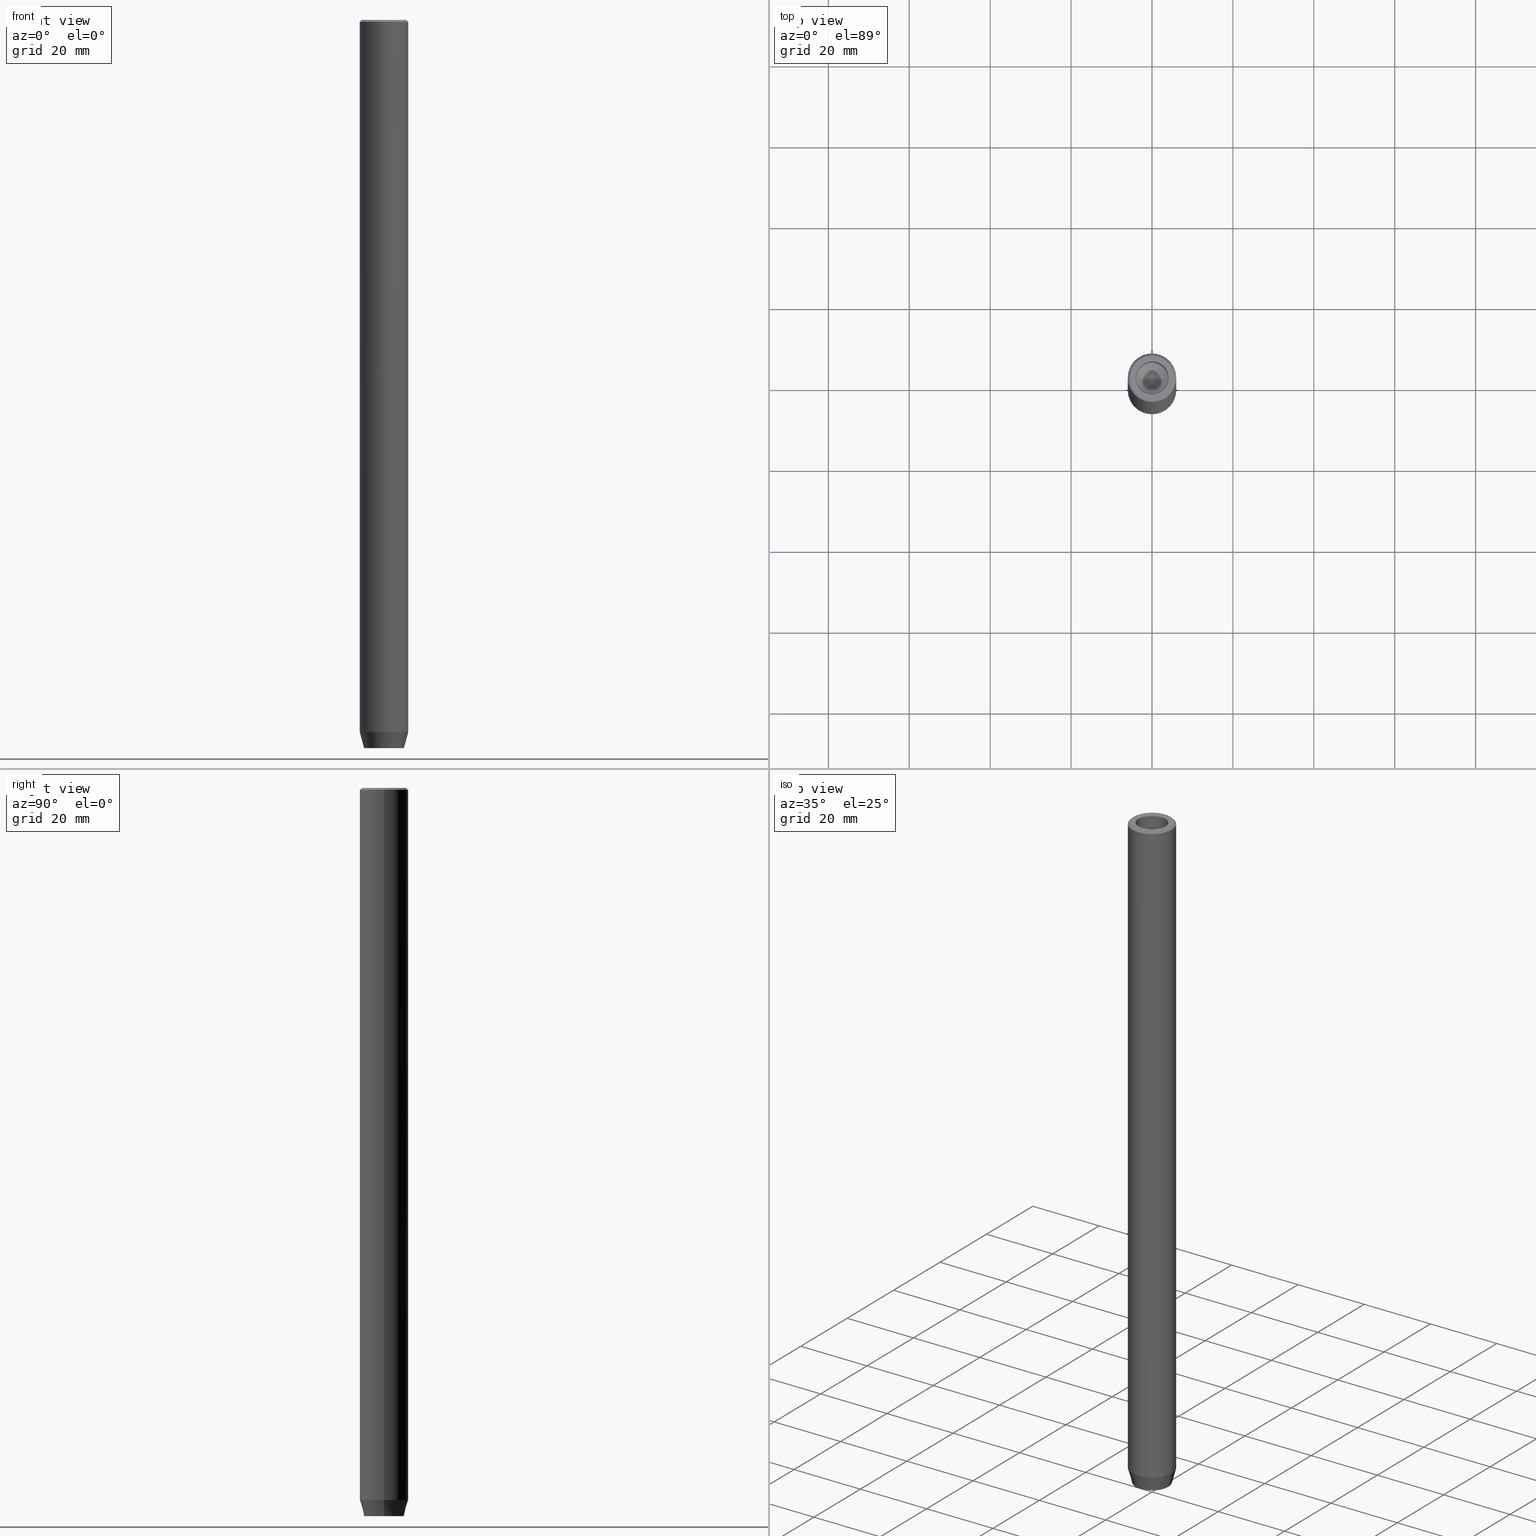
[diagram: canonical four-view strip — front | top / right | iso, engineering-drawing reading convention]
A machine part, canonical four-view strip (front | top / right | iso — engineering-drawing reading convention). The complete STEP part file that produces these views, byte-faithful:
ISO-10303-21;
HEADER;
FILE_DESCRIPTION (( 'STEP AP203' ),
    '1' );
FILE_NAME ('f27b.STEP',
    '2024-01-02T19:11:00',
    ( '' ),
    ( '' ),
    'SwSTEP 2.0',
    'SolidWorks 2019',
    '' );
FILE_SCHEMA (( 'CONFIG_CONTROL_DESIGN' ));
ENDSEC;

DATA;
#1 = AXIS2_PLACEMENT_3D ( 'NONE', #82, #423, #521 ) ;
#2 = LINE ( 'NONE', #211, #68 ) ;
#3 = DIRECTION ( 'NONE',  ( 3.004629197474318063E-16, 1.000000000000000000, 0.000000000000000000 ) ) ;
#4 = CARTESIAN_POINT ( 'NONE',  ( 0.000000000000000000, 0.000000000000000000, -0.4999999999999891753 ) ) ;
#5 = DIRECTION ( 'NONE',  ( -0.8660254037844387076, 0.4999999999999997780, 0.000000000000000000 ) ) ;
#6 = VECTOR ( 'NONE', #103, 1000.000000000000114 ) ;
#7 = DIRECTION ( 'NONE',  ( 1.000000000000000000, 0.000000000000000000, 0.000000000000000000 ) ) ;
#8 = EDGE_CURVE ( 'NONE', #277, #551, #499, .T. ) ;
#9 = LINE ( 'NONE', #464, #177 ) ;
#10 = CARTESIAN_POINT ( 'NONE',  ( 3.999999999999996447, 0.000000000000000000, -0.2999999999999999889 ) ) ;
#11 = AXIS2_PLACEMENT_3D ( 'NONE', #248, #84, #522 ) ;
#12 = EDGE_CURVE ( 'NONE', #48, #226, #301, .T. ) ;
#13 = DIRECTION ( 'NONE',  ( 1.000000000000000000, 0.000000000000000000, 0.000000000000000000 ) ) ;
#14 = ORIENTED_EDGE ( 'NONE', *, *, #18, .F. ) ;
#15 = DIRECTION ( 'NONE',  ( 1.000000000000000000, 0.000000000000000000, 0.000000000000000000 ) ) ;
#16 = ORIENTED_EDGE ( 'NONE', *, *, #212, .F. ) ;
#17 = DIRECTION ( 'NONE',  ( -0.8660254037844387076, -0.5000000000000001110, 0.000000000000000000 ) ) ;
#18 = EDGE_CURVE ( 'NONE', #109, #405, #589, .T. ) ;
#19 = ORIENTED_EDGE ( 'NONE', *, *, #315, .T. ) ;
#20 = DIRECTION ( 'NONE',  ( -0.8660254037844385966, -0.4999999999999999445, 0.000000000000000000 ) ) ;
#21 = AXIS2_PLACEMENT_3D ( 'NONE', #245, #154, #491 ) ;
#22 = LINE ( 'NONE', #424, #352 ) ;
#23 = ORIENTED_EDGE ( 'NONE', *, *, #527, .T. ) ;
#24 = ADVANCED_FACE ( 'NONE', ( #634 ), #185, .F. ) ;
#25 = ORIENTED_EDGE ( 'NONE', *, *, #461, .F. ) ;
#26 = VECTOR ( 'NONE', #470, 1000.000000000000227 ) ;
#27 = AXIS2_PLACEMENT_3D ( 'NONE', #4, #549, #7 ) ;
#28 = FACE_OUTER_BOUND ( 'NONE', #316, .T. ) ;
#29 = FACE_OUTER_BOUND ( 'NONE', #451, .T. ) ;
#30 = EDGE_CURVE ( 'NONE', #587, #126, #348, .T. ) ;
#31 = ORIENTED_EDGE ( 'NONE', *, *, #418, .F. ) ;
#32 = DIRECTION ( 'NONE',  ( -0.000000000000000000, -0.000000000000000000, 1.000000000000000000 ) ) ;
#33 = EDGE_CURVE ( 'NONE', #143, #504, #79, .T. ) ;
#34 = ORIENTED_EDGE ( 'NONE', *, *, #61, .T. ) ;
#35 = APPROVAL_ROLE ( '' ) ;
#36 = CIRCLE ( 'NONE', #125, 5.500000000000004441 ) ;
#37 = DATE_TIME_ROLE ( 'classification_date' ) ;
#38 = DIRECTION ( 'NONE',  ( -0.000000000000000000, -0.000000000000000000, 1.000000000000000000 ) ) ;
#39 = ORIENTED_EDGE ( 'NONE', *, *, #337, .F. ) ;
#40 = CALENDAR_DATE ( 2024, 2, 1 ) ;
#41 = CARTESIAN_POINT ( 'NONE',  ( 0.000000000000000000, 4.928203230275505220, -180.0000000000000000 ) ) ;
#42 = APPROVAL_ROLE ( '' ) ;
#43 = CARTESIAN_POINT ( 'NONE',  ( 2.499999999999999556, -1.443375672974064550, -174.1999999999999886 ) ) ;
#44 = ORIENTED_EDGE ( 'NONE', *, *, #8, .F. ) ;
#45 = CIRCLE ( 'NONE', #610, 5.500000000000004441 ) ;
#46 = DIRECTION ( 'NONE',  ( -0.2588190451025214611, 3.169619151431773569E-17, 0.9659258262890680902 ) ) ;
#47 = EDGE_CURVE ( 'NONE', #251, #226, #157, .T. ) ;
#48 = VERTEX_POINT ( 'NONE', #298 ) ;
#49 = LINE ( 'NONE', #584, #91 ) ;
#50 = VERTEX_POINT ( 'NONE', #160 ) ;
#51 = ORIENTED_EDGE ( 'NONE', *, *, #478, .F. ) ;
#52 = TOROIDAL_SURFACE ( 'NONE', #493, 4.299999999999996270, 0.2999999999999999889 ) ;
#53 = DIRECTION ( 'NONE',  ( 1.000000000000000000, 0.000000000000000000, 0.000000000000000000 ) ) ;
#54 = CC_DESIGN_PERSON_AND_ORGANIZATION_ASSIGNMENT ( #239, #433, ( #540 ) ) ;
#55 = ORIENTED_EDGE ( 'NONE', *, *, #337, .T. ) ;
#56 = CARTESIAN_POINT ( 'NONE',  ( 6.000000000000000000, 0.000000000000000000, -176.0000000000000000 ) ) ;
#57 = EDGE_LOOP ( 'NONE', ( #134, #19, #305, #440 ) ) ;
#58 = VECTOR ( 'NONE', #497, 1000.000000000000000 ) ;
#59 = DIRECTION ( 'NONE',  ( 1.000000000000000000, 0.000000000000000000, 0.000000000000000000 ) ) ;
#60 = DIRECTION ( 'NONE',  ( 0.8660254037844385966, -0.4999999999999999445, 0.000000000000000000 ) ) ;
#61 = EDGE_CURVE ( 'NONE', #551, #180, #253, .T. ) ;
#62 = ORIENTED_EDGE ( 'NONE', *, *, #502, .T. ) ;
#63 = CARTESIAN_POINT ( 'NONE',  ( 0.000000000000000000, 0.000000000000000000, -176.0000000000000000 ) ) ;
#64 = DIRECTION ( 'NONE',  ( -0.000000000000000000, -0.000000000000000000, 1.000000000000000000 ) ) ;
#65 = CARTESIAN_POINT ( 'NONE',  ( -3.999999999999996447, 4.898587196589408884E-16, 0.000000000000000000 ) ) ;
#66 = DIRECTION ( 'NONE',  ( -0.000000000000000000, -0.000000000000000000, -1.000000000000000000 ) ) ;
#67 = DIRECTION ( 'NONE',  ( -0.000000000000000000, -0.000000000000000000, 1.000000000000000000 ) ) ;
#68 = VECTOR ( 'NONE', #601, 1000.000000000000114 ) ;
#69 = ADVANCED_FACE ( 'NONE', ( #548 ), #131, .F. ) ;
#70 = CIRCLE ( 'NONE', #27, 6.000000000000000000 ) ;
#71 = CARTESIAN_POINT ( 'NONE',  ( 4.928203230275505220, 0.000000000000000000, -180.0000000000000000 ) ) ;
#72 = ORIENTED_EDGE ( 'NONE', *, *, #422, .F. ) ;
#73 = DIRECTION ( 'NONE',  ( 0.000000000000000000, 0.000000000000000000, -1.000000000000000000 ) ) ;
#74 = FACE_OUTER_BOUND ( 'NONE', #249, .T. ) ;
#75 = ORIENTED_EDGE ( 'NONE', *, *, #198, .T. ) ;
#76 = ORIENTED_EDGE ( 'NONE', *, *, #8, .T. ) ;
#77 =( NAMED_UNIT ( * ) SI_UNIT ( $, .STERADIAN. ) SOLID_ANGLE_UNIT ( ) );
#78 = ORIENTED_EDGE ( 'NONE', *, *, #107, .F. ) ;
#79 = CIRCLE ( 'NONE', #468, 3.999999999999996447 ) ;
#80 = ORIENTED_EDGE ( 'NONE', *, *, #444, .T. ) ;
#81 = FACE_OUTER_BOUND ( 'NONE', #453, .T. ) ;
#82 = CARTESIAN_POINT ( 'NONE',  ( 1.249999999999999778, -2.165063509461096380, -174.1999999999999886 ) ) ;
#83 = AXIS2_PLACEMENT_3D ( 'NONE', #463, #595, #605 ) ;
#84 = DIRECTION ( 'NONE',  ( 0.000000000000000000, -0.000000000000000000, 1.000000000000000000 ) ) ;
#85 = ORIENTED_EDGE ( 'NONE', *, *, #442, .T. ) ;
#86 = DIRECTION ( 'NONE',  ( 1.000000000000000000, 0.000000000000000000, 0.000000000000000000 ) ) ;
#87 = EDGE_LOOP ( 'NONE', ( #523, #489, #310, #474 ) ) ;
#88 = DIRECTION ( 'NONE',  ( -1.000000000000000000, 0.000000000000000000, 0.000000000000000000 ) ) ;
#89 = ORIENTED_EDGE ( 'NONE', *, *, #346, .F. ) ;
#90 = EDGE_CURVE ( 'NONE', #226, #48, #359, .T. ) ;
#91 = VECTOR ( 'NONE', #46, 1000.000000000000000 ) ;
#92 = PERSON ( 'NEUR�EN�', 'NEUR�EN�', 'NEUR�EN�', ('NEUR�EN�'), ('NEUR�EN�'), ('NEUR�EN�') ) ;
#93 = DIRECTION ( 'NONE',  ( 3.004629197474318063E-16, 1.000000000000000000, 0.000000000000000000 ) ) ;
#94 = CALENDAR_DATE ( 2024, 2, 1 ) ;
#95 = CARTESIAN_POINT ( 'NONE',  ( 6.000000000000000000, 0.000000000000000000, 0.000000000000000000 ) ) ;
#96 = ADVANCED_FACE ( 'NONE', ( #368 ), #52, .T. ) ;
#97 = CARTESIAN_POINT ( 'NONE',  ( 0.000000000000000000, 0.000000000000000000, -17.00000000000000000 ) ) ;
#98 = ORIENTED_EDGE ( 'NONE', *, *, #633, .F. ) ;
#99 = CIRCLE ( 'NONE', #146, 0.2999999999999999889 ) ;
#100 = APPROVAL ( #392, 'NEUR�EN�' ) ;
#101 = CALENDAR_DATE ( 2024, 2, 1 ) ;
#102 = LINE ( 'NONE', #490, #402 ) ;
#103 = DIRECTION ( 'NONE',  ( -0.8660254037844387076, 0.4999999999999997780, 0.000000000000000000 ) ) ;
#104 = CARTESIAN_POINT ( 'NONE',  ( 2.499999999999999556, -1.443375672974064550, -174.1999999999999886 ) ) ;
#105 = ORIENTED_EDGE ( 'NONE', *, *, #153, .F. ) ;
#106 = DIRECTION ( 'NONE',  ( -0.000000000000000000, -0.000000000000000000, 1.000000000000000000 ) ) ;
#107 = EDGE_CURVE ( 'NONE', #544, #520, #166, .T. ) ;
#108 = ORIENTED_EDGE ( 'NONE', *, *, #162, .F. ) ;
#109 = VERTEX_POINT ( 'NONE', #117 ) ;
#110 = AXIS2_PLACEMENT_3D ( 'NONE', #132, #532, #638 ) ;
#111 = LOCAL_TIME ( 20, 11, 0.000000000000000000, #482 ) ;
#112 = CARTESIAN_POINT ( 'NONE',  ( 0.000000000000000000, 0.000000000000000000, -180.0000000000000000 ) ) ;
#113 = CC_DESIGN_PERSON_AND_ORGANIZATION_ASSIGNMENT ( #295, #196, ( #540 ) ) ;
#114 = DIRECTION ( 'NONE',  ( 1.000000000000000000, 0.000000000000000000, 0.000000000000000000 ) ) ;
#115 = CARTESIAN_POINT ( 'NONE',  ( 2.499999999999999556, 0.000000000000000000, -174.1999999999999886 ) ) ;
#116 = ORIENTED_EDGE ( 'NONE', *, *, #254, .F. ) ;
#117 = CARTESIAN_POINT ( 'NONE',  ( 6.505213034913026604E-16, -2.886751345948127767, -174.1999999999999886 ) ) ;
#118 = EDGE_LOOP ( 'NONE', ( #76, #565, #14, #291 ) ) ;
#119 = DESIGN_CONTEXT ( 'detailed design', #264, 'design' ) ;
#120 = CARTESIAN_POINT ( 'NONE',  ( 0.000000000000000000, 0.000000000000000000, -176.0000000000000000 ) ) ;
#121 = PLANE ( 'NONE',  #123 ) ;
#122 = EDGE_LOOP ( 'NONE', ( #55, #568 ) ) ;
#123 = AXIS2_PLACEMENT_3D ( 'NONE', #378, #268, #127 ) ;
#124 = PERSON_AND_ORGANIZATION_ROLE ( 'design_owner' ) ;
#125 = AXIS2_PLACEMENT_3D ( 'NONE', #311, #106, #401 ) ;
#126 = VERTEX_POINT ( 'NONE', #318 ) ;
#127 = DIRECTION ( 'NONE',  ( -3.004629197474318063E-16, -1.000000000000000000, 0.000000000000000000 ) ) ;
#128 = CARTESIAN_POINT ( 'NONE',  ( -2.500000000000000444, -1.443375672974064106, -180.0000000000000000 ) ) ;
#129 = DIRECTION ( 'NONE',  ( -0.000000000000000000, -0.000000000000000000, -1.000000000000000000 ) ) ;
#130 = CARTESIAN_POINT ( 'NONE',  ( 0.000000000000000000, 2.886751345948129543, -174.1999999999999886 ) ) ;
#131 = CONICAL_SURFACE ( 'NONE', #397, 3.999999999999995559, 1.029744258676653645 ) ;
#132 = CARTESIAN_POINT ( 'NONE',  ( 0.000000000000000000, 0.000000000000000000, 0.000000000000000000 ) ) ;
#133 = ORIENTED_EDGE ( 'NONE', *, *, #212, .T. ) ;
#134 = ORIENTED_EDGE ( 'NONE', *, *, #90, .T. ) ;
#135 = PLANE ( 'NONE',  #414 ) ;
#136 = VECTOR ( 'NONE', #38, 1000.000000000000000 ) ;
#137 = ORIENTED_EDGE ( 'NONE', *, *, #150, .T. ) ;
#138 = CC_DESIGN_APPROVAL ( #576, ( #540 ) ) ;
#139 = DIRECTION ( 'NONE',  ( 0.000000000000000000, 0.000000000000000000, 1.000000000000000000 ) ) ;
#140 = PERSON_AND_ORGANIZATION ( #92, #276 ) ;
#141 = ADVANCED_FACE ( 'NONE', ( #375 ), #121, .F. ) ;
#142 = ORIENTED_EDGE ( 'NONE', *, *, #633, .T. ) ;
#143 = VERTEX_POINT ( 'NONE', #213 ) ;
#144 = CARTESIAN_POINT ( 'NONE',  ( -3.999999999999995559, 4.898587196589407898E-16, -17.00000000000000000 ) ) ;
#145 = EDGE_CURVE ( 'NONE', #506, #180, #505, .T. ) ;
#146 = AXIS2_PLACEMENT_3D ( 'NONE', #536, #432, #197 ) ;
#147 = APPLICATION_CONTEXT ( 'configuration controlled 3d designs of mechanical parts and assemblies' ) ;
#148 = VECTOR ( 'NONE', #593, 1000.000000000000000 ) ;
#149 = DIRECTION ( 'NONE',  ( 0.000000000000000000, 0.000000000000000000, -1.000000000000000000 ) ) ;
#150 = EDGE_CURVE ( 'NONE', #456, #234, #467, .T. ) ;
#151 = CALENDAR_DATE ( 2024, 2, 1 ) ;
#152 = CARTESIAN_POINT ( 'NONE',  ( 0.000000000000000000, 0.000000000000000000, 0.000000000000000000 ) ) ;
#153 = EDGE_CURVE ( 'NONE', #475, #426, #608, .T. ) ;
#154 = DIRECTION ( 'NONE',  ( -0.000000000000000000, -0.000000000000000000, 1.000000000000000000 ) ) ;
#155 = PERSON_AND_ORGANIZATION ( #92, #276 ) ;
#156 = FACE_OUTER_BOUND ( 'NONE', #118, .T. ) ;
#157 = LINE ( 'NONE', #56, #191 ) ;
#158 = AXIS2_PLACEMENT_3D ( 'NONE', #379, #473, #561 ) ;
#159 = LINE ( 'NONE', #164, #293 ) ;
#160 = CARTESIAN_POINT ( 'NONE',  ( -4.827031923828040939E-15, 0.000000000000000000, -19.40344247611024286 ) ) ;
#161 = DIRECTION ( 'NONE',  ( -0.000000000000000000, -0.000000000000000000, 1.000000000000000000 ) ) ;
#162 = EDGE_CURVE ( 'NONE', #201, #251, #628, .T. ) ;
#163 = ORIENTED_EDGE ( 'NONE', *, *, #187, .T. ) ;
#164 = CARTESIAN_POINT ( 'NONE',  ( -2.500000000000000444, -1.443375672974064106, -174.1999999999999886 ) ) ;
#165 = ORIENTED_EDGE ( 'NONE', *, *, #145, .T. ) ;
#166 = CIRCLE ( 'NONE', #322, 4.299999999999996270 ) ;
#167 = APPROVAL_PERSON_ORGANIZATION ( #630, #100, #284 ) ;
#168 = CARTESIAN_POINT ( 'NONE',  ( -1.250000000000000000, 2.165063509461097269, -180.0000000000000000 ) ) ;
#169 = CARTESIAN_POINT ( 'NONE',  ( 0.000000000000000000, 0.000000000000000000, -176.0000000000000000 ) ) ;
#170 = CARTESIAN_POINT ( 'NONE',  ( 4.299999999999996270, 0.000000000000000000, 0.000000000000000000 ) ) ;
#171 = DIRECTION ( 'NONE',  ( -0.000000000000000000, -0.000000000000000000, 1.000000000000000000 ) ) ;
#172 = EDGE_LOOP ( 'NONE', ( #137, #465, #207, #133 ) ) ;
#173 = ADVANCED_BREP_SHAPE_REPRESENTATION ( 'f27b', ( #312, #308 ), #581 ) ;
#174 = CARTESIAN_POINT ( 'NONE',  ( 0.000000000000000000, 0.000000000000000000, 0.000000000000000000 ) ) ;
#175 = ORIENTED_EDGE ( 'NONE', *, *, #198, .F. ) ;
#176 = CARTESIAN_POINT ( 'NONE',  ( 0.000000000000000000, 0.000000000000000000, -180.0000000000000000 ) ) ;
#177 = VECTOR ( 'NONE', #17, 999.9999999999998863 ) ;
#178 = AXIS2_PLACEMENT_3D ( 'NONE', #317, #208, #503 ) ;
#179 = CARTESIAN_POINT ( 'NONE',  ( -1.250000000000000000, 2.165063509461097269, -174.1999999999999886 ) ) ;
#180 = VERTEX_POINT ( 'NONE', #182 ) ;
#181 = CARTESIAN_POINT ( 'NONE',  ( 0.000000000000000000, 0.000000000000000000, 0.000000000000000000 ) ) ;
#182 = CARTESIAN_POINT ( 'NONE',  ( -2.499999999999999556, 1.443375672974064994, -180.0000000000000000 ) ) ;
#183 = ORIENTED_EDGE ( 'NONE', *, *, #187, .F. ) ;
#184 =( LENGTH_UNIT ( ) NAMED_UNIT ( * ) SI_UNIT ( .MILLI., .METRE. ) );
#185 = CONICAL_SURFACE ( 'NONE', #545, 3.999999999999995559, 1.029744258676653645 ) ;
#186 = LOCAL_TIME ( 20, 11, 0.000000000000000000, #622 ) ;
#187 = EDGE_CURVE ( 'NONE', #234, #277, #9, .T. ) ;
#188 = ORIENTED_EDGE ( 'NONE', *, *, #18, .T. ) ;
#189 = SHAPE_DEFINITION_REPRESENTATION ( #309, #173 ) ;
#190 = PLANE ( 'NONE',  #11 ) ;
#191 = VECTOR ( 'NONE', #541, 1000.000000000000000 ) ;
#192 = ORIENTED_EDGE ( 'NONE', *, *, #205, .F. ) ;
#193 = DATE_AND_TIME ( #40, #186 ) ;
#194 = CARTESIAN_POINT ( 'NONE',  ( 0.000000000000000000, 0.000000000000000000, -0.2999999999999999889 ) ) ;
#195 = CC_DESIGN_APPROVAL ( #273, ( #391 ) ) ;
#196 = PERSON_AND_ORGANIZATION_ROLE ( 'design_supplier' ) ;
#197 = DIRECTION ( 'NONE',  ( 0.000000000000000000, 0.000000000000000000, -1.000000000000000000 ) ) ;
#198 = EDGE_CURVE ( 'NONE', #406, #109, #22, .T. ) ;
#199 = CARTESIAN_POINT ( 'NONE',  ( 1.250000000000000222, 2.165063509461097269, -174.1999999999999886 ) ) ;
#200 = LINE ( 'NONE', #588, #439 ) ;
#201 = VERTEX_POINT ( 'NONE', #611 ) ;
#202 = DIRECTION ( 'NONE',  ( -1.000000000000000000, 1.224646799147353207E-16, 0.000000000000000000 ) ) ;
#203 = DIRECTION ( 'NONE',  ( -0.000000000000000000, -0.000000000000000000, 1.000000000000000000 ) ) ;
#204 = AXIS2_PLACEMENT_3D ( 'NONE', #120, #67, #319 ) ;
#205 = EDGE_CURVE ( 'NONE', #329, #504, #380, .T. ) ;
#206 = CARTESIAN_POINT ( 'NONE',  ( 0.000000000000000000, 0.000000000000000000, -0.4999999999999891753 ) ) ;
#207 = ORIENTED_EDGE ( 'NONE', *, *, #442, .F. ) ;
#208 = DIRECTION ( 'NONE',  ( 1.000000000000000000, 0.000000000000000000, -0.000000000000000000 ) ) ;
#209 = CARTESIAN_POINT ( 'NONE',  ( 0.000000000000000000, 0.000000000000000000, -17.00000000000000000 ) ) ;
#210 = ORIENTED_EDGE ( 'NONE', *, *, #315, .F. ) ;
#211 = CARTESIAN_POINT ( 'NONE',  ( 1.250000000000000222, 2.165063509461097269, -180.0000000000000000 ) ) ;
#212 = EDGE_CURVE ( 'NONE', #126, #456, #372, .T. ) ;
#213 = CARTESIAN_POINT ( 'NONE',  ( -3.999999999999996447, 4.898587196589408884E-16, -0.2999999999999999889 ) ) ;
#214 = AXIS2_PLACEMENT_3D ( 'NONE', #194, #238, #632 ) ;
#215 = AXIS2_PLACEMENT_3D ( 'NONE', #97, #286, #481 ) ;
#216 = DIRECTION ( 'NONE',  ( -0.000000000000000000, -0.000000000000000000, 1.000000000000000000 ) ) ;
#217 = PRODUCT_DEFINITION ( 'NEZN�M�', '', #540, #119 ) ;
#218 = DIRECTION ( 'NONE',  ( 1.000000000000000000, 0.000000000000000000, 0.000000000000000000 ) ) ;
#219 = PLANE ( 'NONE',  #1 ) ;
#220 = CYLINDRICAL_SURFACE ( 'NONE', #412, 3.999999999999996447 ) ;
#221 = FACE_OUTER_BOUND ( 'NONE', #269, .T. ) ;
#222 = VERTEX_POINT ( 'NONE', #515 ) ;
#223 = LINE ( 'NONE', #179, #26 ) ;
#224 = ORIENTED_EDGE ( 'NONE', *, *, #150, .F. ) ;
#225 = ADVANCED_FACE ( 'NONE', ( #81 ), #413, .T. ) ;
#226 = VERTEX_POINT ( 'NONE', #501 ) ;
#227 = EDGE_LOOP ( 'NONE', ( #34, #235, #323, #23 ) ) ;
#228 = AXIS2_PLACEMENT_3D ( 'NONE', #181, #32, #86 ) ;
#229 = LOCAL_TIME ( 20, 11, 0.000000000000000000, #384 ) ;
#230 = DIRECTION ( 'NONE',  ( -0.000000000000000000, -0.000000000000000000, 1.000000000000000000 ) ) ;
#231 = EDGE_LOOP ( 'NONE', ( #469, #627, #371 ) ) ;
#232 =( NAMED_UNIT ( * ) PLANE_ANGLE_UNIT ( ) SI_UNIT ( $, .RADIAN. ) );
#233 = ADVANCED_FACE ( 'NONE', ( #74 ), #220, .F. ) ;
#234 = VERTEX_POINT ( 'NONE', #260 ) ;
#235 = ORIENTED_EDGE ( 'NONE', *, *, #145, .F. ) ;
#236 = SECURITY_CLASSIFICATION_LEVEL ( 'unclassified' ) ;
#237 = AXIS2_PLACEMENT_3D ( 'NONE', #559, #314, #604 ) ;
#238 = DIRECTION ( 'NONE',  ( -0.000000000000000000, -0.000000000000000000, 1.000000000000000000 ) ) ;
#239 = PERSON_AND_ORGANIZATION ( #92, #276 ) ;
#240 = CARTESIAN_POINT ( 'NONE',  ( -4.299999999999996270, 5.265981236333614526E-16, -0.2999999999999999889 ) ) ;
#241 = CALENDAR_DATE ( 2024, 2, 1 ) ;
#242 = DIRECTION ( 'NONE',  ( -0.000000000000000000, -0.000000000000000000, -1.000000000000000000 ) ) ;
#243 = TOROIDAL_SURFACE ( 'NONE', #214, 4.299999999999996270, 0.2999999999999999889 ) ;
#244 = VECTOR ( 'NONE', #485, 999.9999999999998863 ) ;
#245 = CARTESIAN_POINT ( 'NONE',  ( 0.000000000000000000, 0.000000000000000000, -176.0000000000000000 ) ) ;
#246 = APPROVAL_PERSON_ORGANIZATION ( #287, #273, #42 ) ;
#247 = COORDINATED_UNIVERSAL_TIME_OFFSET ( 1, 0, .AHEAD. ) ;
#248 = CARTESIAN_POINT ( 'NONE',  ( 0.000000000000000000, 0.000000000000000000, 0.000000000000000000 ) ) ;
#249 = EDGE_LOOP ( 'NONE', ( #339, #381, #612, #192 ) ) ;
#250 = DIRECTION ( 'NONE',  ( -0.8571673007021118895, 1.049727191138618079E-16, 0.5150380749100549327 ) ) ;
#251 = VERTEX_POINT ( 'NONE', #71 ) ;
#252 = CARTESIAN_POINT ( 'NONE',  ( -4.299999999999996270, 5.265981236333614526E-16, 0.000000000000000000 ) ) ;
#253 = LINE ( 'NONE', #257, #271 ) ;
#254 = EDGE_CURVE ( 'NONE', #506, #587, #223, .T. ) ;
#255 = AXIS2_PLACEMENT_3D ( 'NONE', #492, #161, #53 ) ;
#256 = LINE ( 'NONE', #552, #343 ) ;
#257 = CARTESIAN_POINT ( 'NONE',  ( -2.500000000000000000, 7.511572993685795156E-16, -180.0000000000000000 ) ) ;
#258 = ADVANCED_FACE ( 'NONE', ( #28 ), #364, .T. ) ;
#259 = LINE ( 'NONE', #65, #366 ) ;
#260 = CARTESIAN_POINT ( 'NONE',  ( 2.499999999999999556, -1.443375672974064550, -180.0000000000000000 ) ) ;
#261 = LINE ( 'NONE', #104, #148 ) ;
#262 = CARTESIAN_POINT ( 'NONE',  ( 2.499999999999999556, 0.000000000000000000, -180.0000000000000000 ) ) ;
#263 = ORIENTED_EDGE ( 'NONE', *, *, #61, .F. ) ;
#264 = APPLICATION_CONTEXT ( 'configuration controlled 3d designs of mechanical parts and assemblies' ) ;
#265 = ORIENTED_EDGE ( 'NONE', *, *, #12, .F. ) ;
#266 = PLANE ( 'NONE',  #178 ) ;
#267 = DIRECTION ( 'NONE',  ( -0.000000000000000000, -0.000000000000000000, 1.000000000000000000 ) ) ;
#268 = DIRECTION ( 'NONE',  ( -1.000000000000000000, 3.004629197474318063E-16, 0.000000000000000000 ) ) ;
#269 = EDGE_LOOP ( 'NONE', ( #349, #294, #313, #105 ) ) ;
#270 = EDGE_CURVE ( 'NONE', #544, #143, #471, .T. ) ;
#271 = VECTOR ( 'NONE', #3, 1000.000000000000000 ) ;
#272 = CYLINDRICAL_SURFACE ( 'NONE', #228, 6.000000000000000000 ) ;
#273 = APPROVAL ( #585, 'NEUR�EN�' ) ;
#274 = CARTESIAN_POINT ( 'NONE',  ( 2.499999999999999556, 1.443375672974065216, -174.1999999999999886 ) ) ;
#275 = EDGE_LOOP ( 'NONE', ( #78, #570, #98, #454 ) ) ;
#276 = ORGANIZATION ( 'NEUR�EN�', 'NEUR�EN�', '' ) ;
#277 = VERTEX_POINT ( 'NONE', #347 ) ;
#278 = CARTESIAN_POINT ( 'NONE',  ( -2.500000000000000000, 7.511572993685795156E-16, -174.1999999999999886 ) ) ;
#279 = EDGE_LOOP ( 'NONE', ( #537, #39, #365, #415 ) ) ;
#280 = EDGE_CURVE ( 'NONE', #520, #504, #99, .T. ) ;
#281 = ORIENTED_EDGE ( 'NONE', *, *, #12, .T. ) ;
#282 = FACE_OUTER_BOUND ( 'NONE', #447, .T. ) ;
#283 = CLOSED_SHELL ( 'NONE', ( #297, #233, #69, #590, #430, #609, #386, #334, #617, #530, #258, #24, #543, #96, #562, #141, #300, #636, #484, #625, #225 ) ) ;
#284 = APPROVAL_ROLE ( '' ) ;
#285 = ORIENTED_EDGE ( 'NONE', *, *, #30, .T. ) ;
#286 = DIRECTION ( 'NONE',  ( -0.000000000000000000, -0.000000000000000000, 1.000000000000000000 ) ) ;
#287 = PERSON_AND_ORGANIZATION ( #92, #276 ) ;
#288 = CARTESIAN_POINT ( 'NONE',  ( 5.500000000000004441, 6.735557395310447940E-16, 0.000000000000000000 ) ) ;
#289 = VERTEX_POINT ( 'NONE', #580 ) ;
#290 = DIRECTION ( 'NONE',  ( 1.000000000000000000, 0.000000000000000000, 0.000000000000000000 ) ) ;
#291 = ORIENTED_EDGE ( 'NONE', *, *, #408, .T. ) ;
#292 = VECTOR ( 'NONE', #393, 1000.000000000000000 ) ;
#293 = VECTOR ( 'NONE', #370, 1000.000000000000000 ) ;
#294 = ORIENTED_EDGE ( 'NONE', *, *, #394, .T. ) ;
#295 = PERSON_AND_ORGANIZATION ( #92, #276 ) ;
#296 = LINE ( 'NONE', #288, #244 ) ;
#297 = ADVANCED_FACE ( 'NONE', ( #342 ), #243, .T. ) ;
#298 = CARTESIAN_POINT ( 'NONE',  ( -6.000000000000000000, 7.347880794884119736E-16, -176.0000000000000000 ) ) ;
#299 = CYLINDRICAL_SURFACE ( 'NONE', #255, 3.999999999999996447 ) ;
#300 = ADVANCED_FACE ( 'NONE', ( #156 ), #586, .F. ) ;
#301 = CIRCLE ( 'NONE', #21, 6.000000000000000000 ) ;
#302 = EDGE_LOOP ( 'NONE', ( #163, #303, #175, #496 ) ) ;
#303 = ORIENTED_EDGE ( 'NONE', *, *, #408, .F. ) ;
#304 = DIRECTION ( 'NONE',  ( 0.8571673007021118895, 0.000000000000000000, 0.5150380749100549327 ) ) ;
#305 = ORIENTED_EDGE ( 'NONE', *, *, #547, .T. ) ;
#306 = AXIS2_PLACEMENT_3D ( 'NONE', #176, #230, #218 ) ;
#307 = ORIENTED_EDGE ( 'NONE', *, *, #573, .T. ) ;
#308 = AXIS2_PLACEMENT_3D ( 'NONE', #174, #139, #569 ) ;
#309 = PRODUCT_DEFINITION_SHAPE ( 'NONE', 'NONE',  #217 ) ;
#310 = ORIENTED_EDGE ( 'NONE', *, *, #90, .F. ) ;
#311 = CARTESIAN_POINT ( 'NONE',  ( 0.000000000000000000, 0.000000000000000000, 0.000000000000000000 ) ) ;
#312 = MANIFOLD_SOLID_BREP ( 'Odebrat vysunut�m1', #283 ) ;
#313 = ORIENTED_EDGE ( 'NONE', *, *, #547, .F. ) ;
#314 = DIRECTION ( 'NONE',  ( 0.000000000000000000, 0.000000000000000000, -1.000000000000000000 ) ) ;
#315 = EDGE_CURVE ( 'NONE', #48, #426, #345, .T. ) ;
#316 = EDGE_LOOP ( 'NONE', ( #571, #399, #357, #600 ) ) ;
#317 = CARTESIAN_POINT ( 'NONE',  ( 2.499999999999999556, 0.000000000000000000, -174.1999999999999886 ) ) ;
#318 = CARTESIAN_POINT ( 'NONE',  ( 2.499999999999999556, 1.443375672974065216, -174.1999999999999886 ) ) ;
#319 = DIRECTION ( 'NONE',  ( 1.000000000000000000, 0.000000000000000000, 0.000000000000000000 ) ) ;
#320 = ORIENTED_EDGE ( 'NONE', *, *, #30, .F. ) ;
#321 = CARTESIAN_POINT ( 'NONE',  ( 0.000000000000000000, 0.000000000000000000, 0.000000000000000000 ) ) ;
#322 = AXIS2_PLACEMENT_3D ( 'NONE', #554, #556, #327 ) ;
#323 = ORIENTED_EDGE ( 'NONE', *, *, #336, .F. ) ;
#324 = EDGE_LOOP ( 'NONE', ( #62, #395 ) ) ;
#325 = CIRCLE ( 'NONE', #592, 4.928203230275505220 ) ;
#326 = CARTESIAN_POINT ( 'NONE',  ( -1.250000000000000000, 2.165063509461097269, -174.1999999999999886 ) ) ;
#327 = DIRECTION ( 'NONE',  ( 1.000000000000000000, 0.000000000000000000, 0.000000000000000000 ) ) ;
#328 = DIRECTION ( 'NONE',  ( -0.5000000000000000000, 0.8660254037844387076, 0.000000000000000000 ) ) ;
#329 = VERTEX_POINT ( 'NONE', #443 ) ;
#330 = DIRECTION ( 'NONE',  ( 0.000000000000000000, -1.000000000000000000, 0.000000000000000000 ) ) ;
#331 = FACE_OUTER_BOUND ( 'NONE', #302, .T. ) ;
#332 = DIRECTION ( 'NONE',  ( 1.224646799147353207E-16, 1.000000000000000000, 0.000000000000000000 ) ) ;
#333 = VERTEX_POINT ( 'NONE', #144 ) ;
#334 = ADVANCED_FACE ( 'NONE', ( #434, #446 ), #190, .T. ) ;
#335 = LOCAL_TIME ( 20, 11, 0.000000000000000000, #247 ) ;
#336 = EDGE_CURVE ( 'NONE', #405, #506, #387, .T. ) ;
#337 = EDGE_CURVE ( 'NONE', #520, #544, #524, .T. ) ;
#338 = LINE ( 'NONE', #618, #428 ) ;
#339 = ORIENTED_EDGE ( 'NONE', *, *, #519, .F. ) ;
#340 = COORDINATED_UNIVERSAL_TIME_OFFSET ( 1, 0, .AHEAD. ) ;
#341 = VECTOR ( 'NONE', #129, 1000.000000000000000 ) ;
#342 = FACE_OUTER_BOUND ( 'NONE', #275, .T. ) ;
#343 = VECTOR ( 'NONE', #304, 1000.000000000000000 ) ;
#344 = EDGE_CURVE ( 'NONE', #329, #333, #376, .T. ) ;
#345 = LINE ( 'NONE', #396, #292 ) ;
#346 = EDGE_CURVE ( 'NONE', #201, #48, #49, .T. ) ;
#347 = CARTESIAN_POINT ( 'NONE',  ( 6.505213034913026604E-16, -2.886751345948127767, -180.0000000000000000 ) ) ;
#348 = LINE ( 'NONE', #199, #385 ) ;
#349 = ORIENTED_EDGE ( 'NONE', *, *, #438, .F. ) ;
#350 = PERSON_AND_ORGANIZATION_ROLE ( 'classification_officer' ) ;
#351 = DIRECTION ( 'NONE',  ( 0.000000000000000000, 0.000000000000000000, -1.000000000000000000 ) ) ;
#352 = VECTOR ( 'NONE', #417, 999.9999999999998863 ) ;
#353 = VECTOR ( 'NONE', #93, 1000.000000000000000 ) ;
#354 = EDGE_LOOP ( 'NONE', ( #210, #281, #486, #80 ) ) ;
#355 = FACE_OUTER_BOUND ( 'NONE', #557, .T. ) ;
#356 = ORIENTED_EDGE ( 'NONE', *, *, #344, .T. ) ;
#357 = ORIENTED_EDGE ( 'NONE', *, *, #153, .T. ) ;
#358 = DIRECTION ( 'NONE',  ( 1.000000000000000000, 0.000000000000000000, 0.000000000000000000 ) ) ;
#359 = CIRCLE ( 'NONE', #535, 6.000000000000000000 ) ;
#360 = CARTESIAN_POINT ( 'NONE',  ( -1.249999999999999334, -2.165063509461096825, -174.1999999999999886 ) ) ;
#361 = UNCERTAINTY_MEASURE_WITH_UNIT (LENGTH_MEASURE( 1.000000000000000082E-05 ), #184, 'distance_accuracy_value', 'NONE');
#362 = DIRECTION ( 'NONE',  ( 1.000000000000000000, 0.000000000000000000, 0.000000000000000000 ) ) ;
#363 = ORIENTED_EDGE ( 'NONE', *, *, #47, .T. ) ;
#364 = CONICAL_SURFACE ( 'NONE', #110, 5.500000000000004441, 0.7853981633974552734 ) ;
#365 = ORIENTED_EDGE ( 'NONE', *, *, #280, .T. ) ;
#366 = VECTOR ( 'NONE', #458, 1000.000000000000000 ) ;
#367 = FACE_OUTER_BOUND ( 'NONE', #172, .T. ) ;
#368 = FACE_OUTER_BOUND ( 'NONE', #279, .T. ) ;
#369 = EDGE_LOOP ( 'NONE', ( #72, #108 ) ) ;
#370 = DIRECTION ( 'NONE',  ( -0.000000000000000000, -0.000000000000000000, -1.000000000000000000 ) ) ;
#371 = ORIENTED_EDGE ( 'NONE', *, *, #519, .T. ) ;
#372 = LINE ( 'NONE', #274, #341 ) ;
#373 = EDGE_CURVE ( 'NONE', #226, #599, #626, .T. ) ;
#374 = APPLICATION_PROTOCOL_DEFINITION ( 'international standard', 'config_control_design', 1994, #147 ) ;
#375 = FACE_OUTER_BOUND ( 'NONE', #227, .T. ) ;
#376 = CIRCLE ( 'NONE', #215, 3.999999999999995559 ) ;
#377 = DIRECTION ( 'NONE',  ( -0.000000000000000000, -0.000000000000000000, 1.000000000000000000 ) ) ;
#378 = CARTESIAN_POINT ( 'NONE',  ( -2.500000000000000000, 7.511572993685795156E-16, -174.1999999999999886 ) ) ;
#379 = CARTESIAN_POINT ( 'NONE',  ( 1.250000000000000222, 2.165063509461097269, -174.1999999999999886 ) ) ;
#380 = LINE ( 'NONE', #518, #510 ) ;
#381 = ORIENTED_EDGE ( 'NONE', *, *, #461, .T. ) ;
#382 = PERSON_AND_ORGANIZATION ( #92, #276 ) ;
#383 = AXIS2_PLACEMENT_3D ( 'NONE', #525, #419, #575 ) ;
#384 = COORDINATED_UNIVERSAL_TIME_OFFSET ( 1, 0, .AHEAD. ) ;
#385 = VECTOR ( 'NONE', #60, 1000.000000000000114 ) ;
#386 = ADVANCED_FACE ( 'NONE', ( #534, #437 ), #483, .T. ) ;
#387 = LINE ( 'NONE', #278, #353 ) ;
#388 = CC_DESIGN_PERSON_AND_ORGANIZATION_ASSIGNMENT ( #582, #350, ( #391 ) ) ;
#389 = CARTESIAN_POINT ( 'NONE',  ( -1.249999999999999334, -2.165063509461096825, -174.1999999999999886 ) ) ;
#390 = CIRCLE ( 'NONE', #383, 3.999999999999996447 ) ;
#391 = SECURITY_CLASSIFICATION ( '', '', #236 ) ;
#392 = APPROVAL_STATUS ( 'not_yet_approved' ) ;
#393 = DIRECTION ( 'NONE',  ( -0.000000000000000000, -0.000000000000000000, 1.000000000000000000 ) ) ;
#394 = EDGE_CURVE ( 'NONE', #222, #599, #296, .T. ) ;
#395 = ORIENTED_EDGE ( 'NONE', *, *, #438, .T. ) ;
#396 = CARTESIAN_POINT ( 'NONE',  ( -6.000000000000000000, 7.347880794884119736E-16, 0.000000000000000000 ) ) ;
#397 = AXIS2_PLACEMENT_3D ( 'NONE', #209, #409, #114 ) ;
#398 = ORIENTED_EDGE ( 'NONE', *, *, #162, .T. ) ;
#399 = ORIENTED_EDGE ( 'NONE', *, *, #502, .F. ) ;
#400 = CARTESIAN_POINT ( 'NONE',  ( 0.000000000000000000, 0.000000000000000000, -0.2999999999999999889 ) ) ;
#401 = DIRECTION ( 'NONE',  ( 1.000000000000000000, 0.000000000000000000, 0.000000000000000000 ) ) ;
#402 = VECTOR ( 'NONE', #250, 1000.000000000000000 ) ;
#403 = DIRECTION ( 'NONE',  ( 1.000000000000000000, 0.000000000000000000, 0.000000000000000000 ) ) ;
#404 = DIRECTION ( 'NONE',  ( 0.000000000000000000, 0.000000000000000000, -1.000000000000000000 ) ) ;
#405 = VERTEX_POINT ( 'NONE', #539 ) ;
#406 = VERTEX_POINT ( 'NONE', #43 ) ;
#407 = DIRECTION ( 'NONE',  ( 0.8660254037844385966, 0.4999999999999998890, 0.000000000000000000 ) ) ;
#408 = EDGE_CURVE ( 'NONE', #109, #277, #200, .T. ) ;
#409 = DIRECTION ( 'NONE',  ( -0.000000000000000000, -0.000000000000000000, 1.000000000000000000 ) ) ;
#410 = EDGE_LOOP ( 'NONE', ( #31, #420, #356 ) ) ;
#411 = LINE ( 'NONE', #168, #488 ) ;
#412 = AXIS2_PLACEMENT_3D ( 'NONE', #321, #64, #512 ) ;
#413 = PLANE ( 'NONE',  #237 ) ;
#414 = AXIS2_PLACEMENT_3D ( 'NONE', #326, #328, #20 ) ;
#415 = ORIENTED_EDGE ( 'NONE', *, *, #33, .F. ) ;
#416 = CARTESIAN_POINT ( 'NONE',  ( -2.499999999999999556, 1.443375672974064994, -174.1999999999999886 ) ) ;
#417 = DIRECTION ( 'NONE',  ( -0.8660254037844387076, -0.5000000000000001110, 0.000000000000000000 ) ) ;
#418 = EDGE_CURVE ( 'NONE', #50, #333, #102, .T. ) ;
#419 = DIRECTION ( 'NONE',  ( -0.000000000000000000, -0.000000000000000000, 1.000000000000000000 ) ) ;
#420 = ORIENTED_EDGE ( 'NONE', *, *, #427, .T. ) ;
#421 = CARTESIAN_POINT ( 'NONE',  ( 0.000000000000000000, 0.000000000000000000, -0.2999999999999999889 ) ) ;
#422 = EDGE_CURVE ( 'NONE', #251, #201, #325, .T. ) ;
#423 = DIRECTION ( 'NONE',  ( 0.5000000000000001110, -0.8660254037844387076, 0.000000000000000000 ) ) ;
#424 = CARTESIAN_POINT ( 'NONE',  ( 1.249999999999999778, -2.165063509461096380, -174.1999999999999886 ) ) ;
#425 = MECHANICAL_CONTEXT ( 'NONE', #147, 'mechanical' ) ;
#426 = VERTEX_POINT ( 'NONE', #509 ) ;
#427 = EDGE_CURVE ( 'NONE', #50, #329, #256, .T. ) ;
#428 = VECTOR ( 'NONE', #466, 1000.000000000000000 ) ;
#429 = DATE_AND_TIME ( #151, #335 ) ;
#430 = ADVANCED_FACE ( 'NONE', ( #542 ), #621, .T. ) ;
#431 = DATE_AND_TIME ( #101, #229 ) ;
#432 = DIRECTION ( 'NONE',  ( 0.000000000000000000, -1.000000000000000000, 0.000000000000000000 ) ) ;
#433 = PERSON_AND_ORGANIZATION_ROLE ( 'creator' ) ;
#434 = FACE_BOUND ( 'NONE', #122, .T. ) ;
#435 = DATE_TIME_ROLE ( 'creation_date' ) ;
#436 = VECTOR ( 'NONE', #330, 1000.000000000000000 ) ;
#437 = FACE_OUTER_BOUND ( 'NONE', #369, .T. ) ;
#438 = EDGE_CURVE ( 'NONE', #222, #475, #36, .T. ) ;
#439 = VECTOR ( 'NONE', #242, 1000.000000000000000 ) ;
#440 = ORIENTED_EDGE ( 'NONE', *, *, #373, .F. ) ;
#441 = APPROVAL_STATUS ( 'not_yet_approved' ) ;
#442 = EDGE_CURVE ( 'NONE', #126, #406, #452, .T. ) ;
#443 = CARTESIAN_POINT ( 'NONE',  ( 3.999999999999995559, 0.000000000000000000, -17.00000000000000000 ) ) ;
#444 = EDGE_CURVE ( 'NONE', #599, #426, #70, .T. ) ;
#445 = CARTESIAN_POINT ( 'NONE',  ( 0.000000000000000000, 0.000000000000000000, -17.00000000000000000 ) ) ;
#446 = FACE_OUTER_BOUND ( 'NONE', #324, .T. ) ;
#447 = EDGE_LOOP ( 'NONE', ( #615, #514, #116, #165 ) ) ;
#448 = CARTESIAN_POINT ( 'NONE',  ( -5.500000000000004441, 0.000000000000000000, 0.000000000000000000 ) ) ;
#449 = VECTOR ( 'NONE', #563, 999.9999999999998863 ) ;
#450 = AXIS2_PLACEMENT_3D ( 'NONE', #63, #216, #59 ) ;
#451 = EDGE_LOOP ( 'NONE', ( #455, #16, #320, #307 ) ) ;
#452 = LINE ( 'NONE', #115, #58 ) ;
#453 = EDGE_LOOP ( 'NONE', ( #567, #285, #85, #75, #188, #564 ) ) ;
#454 = ORIENTED_EDGE ( 'NONE', *, *, #280, .F. ) ;
#455 = ORIENTED_EDGE ( 'NONE', *, *, #457, .T. ) ;
#456 = VERTEX_POINT ( 'NONE', #500 ) ;
#457 = EDGE_CURVE ( 'NONE', #289, #456, #2, .T. ) ;
#458 = DIRECTION ( 'NONE',  ( -0.000000000000000000, -0.000000000000000000, 1.000000000000000000 ) ) ;
#459 = CARTESIAN_POINT ( 'NONE',  ( -2.499999999999999556, 1.443375672974064994, -174.1999999999999886 ) ) ;
#460 = CARTESIAN_POINT ( 'NONE',  ( 0.000000000000000000, 0.000000000000000000, 0.000000000000000000 ) ) ;
#461 = EDGE_CURVE ( 'NONE', #333, #143, #259, .T. ) ;
#462 = CARTESIAN_POINT ( 'NONE',  ( -5.500000000000004441, 0.000000000000000000, 0.000000000000000000 ) ) ;
#463 = CARTESIAN_POINT ( 'NONE',  ( 0.000000000000000000, 0.000000000000000000, -17.00000000000000000 ) ) ;
#464 = CARTESIAN_POINT ( 'NONE',  ( 1.249999999999999778, -2.165063509461096380, -180.0000000000000000 ) ) ;
#465 = ORIENTED_EDGE ( 'NONE', *, *, #494, .F. ) ;
#466 = DIRECTION ( 'NONE',  ( -0.000000000000000000, -0.000000000000000000, -1.000000000000000000 ) ) ;
#467 = LINE ( 'NONE', #262, #436 ) ;
#468 = AXIS2_PLACEMENT_3D ( 'NONE', #400, #203, #403 ) ;
#469 = ORIENTED_EDGE ( 'NONE', *, *, #427, .F. ) ;
#470 = DIRECTION ( 'NONE',  ( 0.8660254037844385966, 0.4999999999999998890, 0.000000000000000000 ) ) ;
#471 = CIRCLE ( 'NONE', #591, 0.2999999999999999334 ) ;
#472 = CONICAL_SURFACE ( 'NONE', #574, 5.500000000000004441, 0.7853981633974552734 ) ;
#473 = DIRECTION ( 'NONE',  ( 0.4999999999999999445, 0.8660254037844387076, -0.000000000000000000 ) ) ;
#474 = ORIENTED_EDGE ( 'NONE', *, *, #47, .F. ) ;
#475 = VERTEX_POINT ( 'NONE', #448 ) ;
#476 = CARTESIAN_POINT ( 'NONE',  ( 0.000000000000000000, 0.000000000000000000, 0.000000000000000000 ) ) ;
#477 = DIRECTION ( 'NONE',  ( 1.000000000000000000, 0.000000000000000000, 0.000000000000000000 ) ) ;
#478 = EDGE_CURVE ( 'NONE', #180, #289, #411, .T. ) ;
#479 = AXIS2_PLACEMENT_3D ( 'NONE', #152, #351, #290 ) ;
#480 = APPROVAL_DATE_TIME ( #623, #100 ) ;
#481 = DIRECTION ( 'NONE',  ( 1.000000000000000000, 0.000000000000000000, 0.000000000000000000 ) ) ;
#482 = COORDINATED_UNIVERSAL_TIME_OFFSET ( 1, 0, .AHEAD. ) ;
#483 = PLANE ( 'NONE',  #629 ) ;
#484 = ADVANCED_FACE ( 'NONE', ( #367 ), #266, .F. ) ;
#485 = DIRECTION ( 'NONE',  ( 0.7071067811865525687, 8.659560562354994488E-17, -0.7071067811865425767 ) ) ;
#486 = ORIENTED_EDGE ( 'NONE', *, *, #373, .T. ) ;
#487 = DIRECTION ( 'NONE',  ( -0.4999999999999998335, -0.8660254037844387076, 0.000000000000000000 ) ) ;
#488 = VECTOR ( 'NONE', #407, 1000.000000000000227 ) ;
#489 = ORIENTED_EDGE ( 'NONE', *, *, #346, .T. ) ;
#490 = CARTESIAN_POINT ( 'NONE',  ( -3.999999999999995559, 4.898587196589407898E-16, -17.00000000000000000 ) ) ;
#491 = DIRECTION ( 'NONE',  ( 1.000000000000000000, 0.000000000000000000, 0.000000000000000000 ) ) ;
#492 = CARTESIAN_POINT ( 'NONE',  ( 0.000000000000000000, 0.000000000000000000, 0.000000000000000000 ) ) ;
#493 = AXIS2_PLACEMENT_3D ( 'NONE', #421, #614, #13 ) ;
#494 = EDGE_CURVE ( 'NONE', #406, #234, #261, .T. ) ;
#495 = DIRECTION ( 'NONE',  ( 1.000000000000000000, 0.000000000000000000, 0.000000000000000000 ) ) ;
#496 = ORIENTED_EDGE ( 'NONE', *, *, #494, .T. ) ;
#497 = DIRECTION ( 'NONE',  ( 0.000000000000000000, -1.000000000000000000, 0.000000000000000000 ) ) ;
#498 = CONICAL_SURFACE ( 'NONE', #204, 6.000000000000000000, 0.2617993877991501850 ) ;
#499 = LINE ( 'NONE', #639, #6 ) ;
#500 = CARTESIAN_POINT ( 'NONE',  ( 2.499999999999999556, 1.443375672974065216, -180.0000000000000000 ) ) ;
#501 = CARTESIAN_POINT ( 'NONE',  ( 6.000000000000000000, 0.000000000000000000, -176.0000000000000000 ) ) ;
#502 = EDGE_CURVE ( 'NONE', #475, #222, #45, .T. ) ;
#503 = DIRECTION ( 'NONE',  ( -0.000000000000000000, 0.000000000000000000, -1.000000000000000000 ) ) ;
#504 = VERTEX_POINT ( 'NONE', #10 ) ;
#505 = LINE ( 'NONE', #459, #620 ) ;
#506 = VERTEX_POINT ( 'NONE', #416 ) ;
#507 = ORIENTED_EDGE ( 'NONE', *, *, #205, .T. ) ;
#508 = CC_DESIGN_DATE_AND_TIME_ASSIGNMENT ( #193, #435, ( #217 ) ) ;
#509 = CARTESIAN_POINT ( 'NONE',  ( -6.000000000000000000, 7.347880794884119736E-16, -0.4999999999999891753 ) ) ;
#510 = VECTOR ( 'NONE', #171, 1000.000000000000000 ) ;
#511 = CIRCLE ( 'NONE', #602, 6.000000000000000000 ) ;
#512 = DIRECTION ( 'NONE',  ( 1.000000000000000000, 0.000000000000000000, 0.000000000000000000 ) ) ;
#513 = CYLINDRICAL_SURFACE ( 'NONE', #558, 6.000000000000000000 ) ;
#514 = ORIENTED_EDGE ( 'NONE', *, *, #573, .F. ) ;
#515 = CARTESIAN_POINT ( 'NONE',  ( 5.500000000000004441, 7.041719095097283838E-16, 0.000000000000000000 ) ) ;
#516 = EDGE_LOOP ( 'NONE', ( #89, #398, #363, #265 ) ) ;
#517 = PLANE ( 'NONE',  #158 ) ;
#518 = CARTESIAN_POINT ( 'NONE',  ( 3.999999999999996447, 0.000000000000000000, 0.000000000000000000 ) ) ;
#519 = EDGE_CURVE ( 'NONE', #333, #329, #531, .T. ) ;
#520 = VERTEX_POINT ( 'NONE', #170 ) ;
#521 = DIRECTION ( 'NONE',  ( 0.8660254037844385966, 0.5000000000000000000, 0.000000000000000000 ) ) ;
#522 = DIRECTION ( 'NONE',  ( 1.000000000000000000, 0.000000000000000000, 0.000000000000000000 ) ) ;
#523 = ORIENTED_EDGE ( 'NONE', *, *, #422, .T. ) ;
#524 = CIRCLE ( 'NONE', #479, 4.299999999999996270 ) ;
#525 = CARTESIAN_POINT ( 'NONE',  ( 0.000000000000000000, 0.000000000000000000, -0.2999999999999999889 ) ) ;
#526 = CARTESIAN_POINT ( 'NONE',  ( 6.000000000000000000, 0.000000000000000000, -0.4999999999999891753 ) ) ;
#527 = EDGE_CURVE ( 'NONE', #405, #551, #159, .T. ) ;
#528 = ORIENTED_EDGE ( 'NONE', *, *, #457, .F. ) ;
#529 = DATE_AND_TIME ( #94, #603 ) ;
#530 = ADVANCED_FACE ( 'NONE', ( #555 ), #498, .T. ) ;
#531 = CIRCLE ( 'NONE', #83, 3.999999999999995559 ) ;
#532 = DIRECTION ( 'NONE',  ( 0.000000000000000000, 0.000000000000000000, -1.000000000000000000 ) ) ;
#533 = APPROVAL_DATE_TIME ( #431, #576 ) ;
#534 = FACE_BOUND ( 'NONE', #596, .T. ) ;
#535 = AXIS2_PLACEMENT_3D ( 'NONE', #169, #267, #606 ) ;
#536 = CARTESIAN_POINT ( 'NONE',  ( 4.299999999999996270, 0.000000000000000000, -0.2999999999999999889 ) ) ;
#537 = ORIENTED_EDGE ( 'NONE', *, *, #270, .F. ) ;
#538 = PERSON_AND_ORGANIZATION_ROLE ( 'creator' ) ;
#539 = CARTESIAN_POINT ( 'NONE',  ( -2.500000000000000444, -1.443375672974064106, -174.1999999999999886 ) ) ;
#540 = PRODUCT_DEFINITION_FORMATION_WITH_SPECIFIED_SOURCE ( 'LIBOVOLN�', '', #597, .NOT_KNOWN. ) ;
#541 = DIRECTION ( 'NONE',  ( 0.2588190451025214611, 0.000000000000000000, 0.9659258262890680902 ) ) ;
#542 = FACE_OUTER_BOUND ( 'NONE', #87, .T. ) ;
#543 = ADVANCED_FACE ( 'NONE', ( #355 ), #299, .F. ) ;
#544 = VERTEX_POINT ( 'NONE', #252 ) ;
#545 = AXIS2_PLACEMENT_3D ( 'NONE', #445, #637, #495 ) ;
#546 = DIRECTION ( 'NONE',  ( -0.000000000000000000, -0.000000000000000000, 1.000000000000000000 ) ) ;
#547 = EDGE_CURVE ( 'NONE', #426, #599, #511, .T. ) ;
#548 = FACE_OUTER_BOUND ( 'NONE', #231, .T. ) ;
#549 = DIRECTION ( 'NONE',  ( 0.000000000000000000, 0.000000000000000000, -1.000000000000000000 ) ) ;
#550 = CC_DESIGN_APPROVAL ( #100, ( #217 ) ) ;
#551 = VERTEX_POINT ( 'NONE', #128 ) ;
#552 = CARTESIAN_POINT ( 'NONE',  ( 3.999999999999995559, 0.000000000000000000, -17.00000000000000000 ) ) ;
#553 = CC_DESIGN_PERSON_AND_ORGANIZATION_ASSIGNMENT ( #382, #124, ( #597 ) ) ;
#554 = CARTESIAN_POINT ( 'NONE',  ( 0.000000000000000000, 0.000000000000000000, 0.000000000000000000 ) ) ;
#555 = FACE_OUTER_BOUND ( 'NONE', #516, .T. ) ;
#556 = DIRECTION ( 'NONE',  ( 0.000000000000000000, 0.000000000000000000, -1.000000000000000000 ) ) ;
#557 = EDGE_LOOP ( 'NONE', ( #25, #594, #507, #142 ) ) ;
#558 = AXIS2_PLACEMENT_3D ( 'NONE', #566, #377, #477 ) ;
#559 = CARTESIAN_POINT ( 'NONE',  ( 0.000000000000000000, 0.000000000000000000, -174.1999999999999886 ) ) ;
#560 = APPROVAL_PERSON_ORGANIZATION ( #155, #576, #35 ) ;
#561 = DIRECTION ( 'NONE',  ( -0.8660254037844385966, 0.4999999999999998890, 0.000000000000000000 ) ) ;
#562 = ADVANCED_FACE ( 'NONE', ( #282 ), #135, .F. ) ;
#563 = DIRECTION ( 'NONE',  ( -0.7071067811865525687, 0.000000000000000000, -0.7071067811865425767 ) ) ;
#564 = ORIENTED_EDGE ( 'NONE', *, *, #336, .T. ) ;
#565 = ORIENTED_EDGE ( 'NONE', *, *, #527, .F. ) ;
#566 = CARTESIAN_POINT ( 'NONE',  ( 0.000000000000000000, 0.000000000000000000, 0.000000000000000000 ) ) ;
#567 = ORIENTED_EDGE ( 'NONE', *, *, #254, .T. ) ;
#568 = ORIENTED_EDGE ( 'NONE', *, *, #107, .T. ) ;
#569 = DIRECTION ( 'NONE',  ( 1.000000000000000000, 0.000000000000000000, 0.000000000000000000 ) ) ;
#570 = ORIENTED_EDGE ( 'NONE', *, *, #270, .T. ) ;
#571 = ORIENTED_EDGE ( 'NONE', *, *, #394, .F. ) ;
#572 = AXIS2_PLACEMENT_3D ( 'NONE', #389, #487, #624 ) ;
#573 = EDGE_CURVE ( 'NONE', #587, #289, #338, .T. ) ;
#574 = AXIS2_PLACEMENT_3D ( 'NONE', #476, #73, #88 ) ;
#575 = DIRECTION ( 'NONE',  ( 1.000000000000000000, 0.000000000000000000, 0.000000000000000000 ) ) ;
#576 = APPROVAL ( #441, 'NEUR�EN�' ) ;
#577 = APPROVAL_DATE_TIME ( #429, #273 ) ;
#578 = CC_DESIGN_DATE_AND_TIME_ASSIGNMENT ( #529, #37, ( #391 ) ) ;
#579 = APPLICATION_PROTOCOL_DEFINITION ( 'international standard', 'config_control_design', 1994, #264 ) ;
#580 = CARTESIAN_POINT ( 'NONE',  ( 0.000000000000000000, 2.886751345948129543, -180.0000000000000000 ) ) ;
#581 =( GEOMETRIC_REPRESENTATION_CONTEXT ( 3 ) GLOBAL_UNCERTAINTY_ASSIGNED_CONTEXT ( ( #361 ) ) GLOBAL_UNIT_ASSIGNED_CONTEXT ( ( #184, #232, #77 ) ) REPRESENTATION_CONTEXT ( 'NONE', 'WORKASPACE' ) );
#582 = PERSON_AND_ORGANIZATION ( #92, #276 ) ;
#583 = CC_DESIGN_SECURITY_CLASSIFICATION ( #391, ( #540 ) ) ;
#584 = CARTESIAN_POINT ( 'NONE',  ( -6.000000000000000000, 7.347880794884119736E-16, -176.0000000000000000 ) ) ;
#585 = APPROVAL_STATUS ( 'not_yet_approved' ) ;
#586 = PLANE ( 'NONE',  #572 ) ;
#587 = VERTEX_POINT ( 'NONE', #130 ) ;
#588 = CARTESIAN_POINT ( 'NONE',  ( 6.505213034913026604E-16, -2.886751345948127767, -174.1999999999999886 ) ) ;
#589 = LINE ( 'NONE', #360, #607 ) ;
#590 = ADVANCED_FACE ( 'NONE', ( #221 ), #472, .T. ) ;
#591 = AXIS2_PLACEMENT_3D ( 'NONE', #240, #332, #202 ) ;
#592 = AXIS2_PLACEMENT_3D ( 'NONE', #112, #546, #15 ) ;
#593 = DIRECTION ( 'NONE',  ( -0.000000000000000000, -0.000000000000000000, -1.000000000000000000 ) ) ;
#594 = ORIENTED_EDGE ( 'NONE', *, *, #344, .F. ) ;
#595 = DIRECTION ( 'NONE',  ( -0.000000000000000000, -0.000000000000000000, 1.000000000000000000 ) ) ;
#596 = EDGE_LOOP ( 'NONE', ( #51, #263, #44, #183, #224, #528 ) ) ;
#597 = PRODUCT ( 'f27b', 'f27b', '', ( #425 ) ) ;
#598 = DIRECTION ( 'NONE',  ( -0.000000000000000000, -0.000000000000000000, 1.000000000000000000 ) ) ;
#599 = VERTEX_POINT ( 'NONE', #526 ) ;
#600 = ORIENTED_EDGE ( 'NONE', *, *, #444, .F. ) ;
#601 = DIRECTION ( 'NONE',  ( 0.8660254037844385966, -0.4999999999999999445, 0.000000000000000000 ) ) ;
#602 = AXIS2_PLACEMENT_3D ( 'NONE', #206, #404, #358 ) ;
#603 = LOCAL_TIME ( 20, 11, 0.000000000000000000, #340 ) ;
#604 = DIRECTION ( 'NONE',  ( -1.000000000000000000, 0.000000000000000000, -0.000000000000000000 ) ) ;
#605 = DIRECTION ( 'NONE',  ( 1.000000000000000000, 0.000000000000000000, 0.000000000000000000 ) ) ;
#606 = DIRECTION ( 'NONE',  ( 1.000000000000000000, 0.000000000000000000, 0.000000000000000000 ) ) ;
#607 = VECTOR ( 'NONE', #5, 1000.000000000000114 ) ;
#608 = LINE ( 'NONE', #462, #449 ) ;
#609 = ADVANCED_FACE ( 'NONE', ( #616 ), #513, .T. ) ;
#610 = AXIS2_PLACEMENT_3D ( 'NONE', #460, #598, #362 ) ;
#611 = CARTESIAN_POINT ( 'NONE',  ( -4.928203230275505220, 6.691594553194331608E-16, -180.0000000000000000 ) ) ;
#612 = ORIENTED_EDGE ( 'NONE', *, *, #33, .T. ) ;
#613 = FACE_OUTER_BOUND ( 'NONE', #354, .T. ) ;
#614 = DIRECTION ( 'NONE',  ( -0.000000000000000000, -0.000000000000000000, 1.000000000000000000 ) ) ;
#615 = ORIENTED_EDGE ( 'NONE', *, *, #478, .T. ) ;
#616 = FACE_OUTER_BOUND ( 'NONE', #57, .T. ) ;
#617 = ADVANCED_FACE ( 'NONE', ( #613 ), #272, .T. ) ;
#618 = CARTESIAN_POINT ( 'NONE',  ( 0.000000000000000000, 2.886751345948129543, -174.1999999999999886 ) ) ;
#619 = CC_DESIGN_PERSON_AND_ORGANIZATION_ASSIGNMENT ( #140, #538, ( #217 ) ) ;
#620 = VECTOR ( 'NONE', #66, 1000.000000000000000 ) ;
#621 = CONICAL_SURFACE ( 'NONE', #450, 6.000000000000000000, 0.2617993877991501850 ) ;
#622 = COORDINATED_UNIVERSAL_TIME_OFFSET ( 1, 0, .AHEAD. ) ;
#623 = DATE_AND_TIME ( #241, #111 ) ;
#624 = DIRECTION ( 'NONE',  ( 0.8660254037844387076, -0.4999999999999998335, 0.000000000000000000 ) ) ;
#625 = ADVANCED_FACE ( 'NONE', ( #29 ), #517, .F. ) ;
#626 = LINE ( 'NONE', #95, #136 ) ;
#627 = ORIENTED_EDGE ( 'NONE', *, *, #418, .T. ) ;
#628 = CIRCLE ( 'NONE', #306, 4.928203230275505220 ) ;
#629 = AXIS2_PLACEMENT_3D ( 'NONE', #41, #149, #635 ) ;
#630 = PERSON_AND_ORGANIZATION ( #92, #276 ) ;
#631 = PRODUCT_RELATED_PRODUCT_CATEGORY ( 'detail', '', ( #597 ) ) ;
#632 = DIRECTION ( 'NONE',  ( 1.000000000000000000, 0.000000000000000000, 0.000000000000000000 ) ) ;
#633 = EDGE_CURVE ( 'NONE', #504, #143, #390, .T. ) ;
#634 = FACE_OUTER_BOUND ( 'NONE', #410, .T. ) ;
#635 = DIRECTION ( 'NONE',  ( -1.000000000000000000, 0.000000000000000000, -0.000000000000000000 ) ) ;
#636 = ADVANCED_FACE ( 'NONE', ( #331 ), #219, .F. ) ;
#637 = DIRECTION ( 'NONE',  ( -0.000000000000000000, -0.000000000000000000, 1.000000000000000000 ) ) ;
#638 = DIRECTION ( 'NONE',  ( -1.000000000000000000, 0.000000000000000000, 0.000000000000000000 ) ) ;
#639 = CARTESIAN_POINT ( 'NONE',  ( -1.249999999999999334, -2.165063509461096825, -180.0000000000000000 ) ) ;
ENDSEC;
END-ISO-10303-21;
